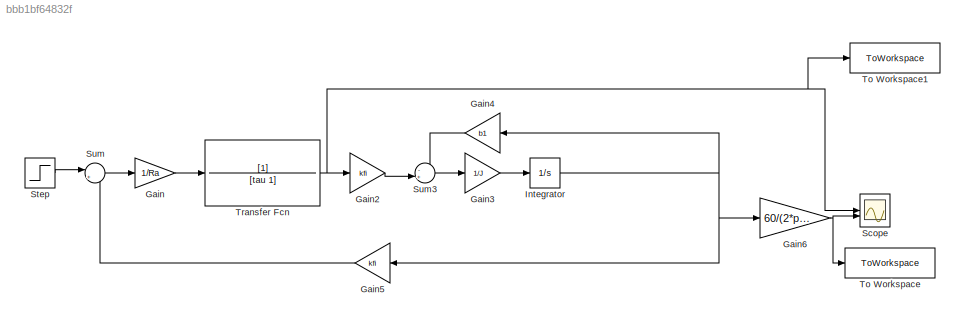
MODEL slx_bbb1bf64832f
KIND model
CONFIG AbsTol = auto
CONFIG EnableMultiTasking = off
CONFIG FixedStep = auto
CONFIG MaxStep = auto
CONFIG MinStep = auto
CONFIG RelTol = 1e-3
CONFIG SampleTimeConstraint = Unconstrained
CONFIG SolverName = VariableStepAuto
CONFIG StartTime = 0.0
CONFIG StopTime = 2
BLOCK [Gain] Gain
  Gain = 1/Ra
BLOCK [Gain] Gain2
  Gain = kfi
BLOCK [Gain] Gain3
  Gain = 1/J
BLOCK [Gain] Gain4
  Gain = b1
  NameLocation = top
BLOCK [Gain] Gain5
  Gain = kfi
  NameLocation = top
BLOCK [Gain] Gain6
  Gain = 60/(2*pi)
BLOCK [Integrator] Integrator
BLOCK [Scope] Scope
  ActiveDisplayYMaximum = 69.807665085858389
  ActiveDisplayYMinimum = -7.7564072317620418
  Floating = off
  GraphicalSettings = {"Style":{"BackgroundColor":[0.12941176470588237,0.12941176470588237,0.12941176470588237],"AxesColor":[0.07058823529411765,0.07058823529411765,0.07058823529411765],"LabelsColor":[0.8509803921568627,0.8509803921568627,0.8509803921568627],"PreserveColors":false,"Visible":[true,true],"LineStyle":["-","-"],"LineWidth":[1.5,1.5],"BarWidth":[0.9,0.9],"LineColor":["auto","auto"],"LineFaceAlpha":[1,1],"Li...<+2758ch>
  LayoutDimensionsString = [2,1]
  MultipleDisplayCache = [{"MaxYLimMag":69.807665085858389,"MaxYLimReal":69.807665085858389,"MinYLimMag":0,"MinYLimReal":-7.7564072317620418,"PlotAsMagnitudePhase":false,"ShowGrid":true,"ShowLegend":false,"Title":"%<SignalLabel>","YLabel":""},{"MaxYLimMag":1242.8172906303612,"MaxYLimReal":1058.5125579909138,"MinYLimMag":0,"MinYLimReal":1058.481930688567,"PlotAsMagnitudePhase":false,"ShowGrid":true,"ShowLegend":false,"Titl...<+33ch>
  NumInputPorts = 2
  ScopeFrameLocation = window
  WasSavedAsWebScope = on
  WindowPosition = [962.000000,50.000000,958.000000,1000.000000,]
BLOCK [Step] Step
  After = Ua
  SampleTime = 0
BLOCK [Sum] Sum
  Inputs = |+-
BLOCK [Sum] Sum3
  Inputs = -+|
BLOCK [ToWorkspace] To Workspace
  FixptAsFi = on
  MaxDataPoints = inf
  SampleTime = -1
  SaveFormat = Structure With Time
  VariableName = omega
BLOCK [ToWorkspace] To Workspace1
  FixptAsFi = on
  MaxDataPoints = inf
  SampleTime = -1
  SaveFormat = Structure With Time
  VariableName = ia
BLOCK [TransferFcn] Transfer Fcn
  Denominator = [tau 1]
LINE Gain2:1 -> Sum3:2
LINE Gain3:1 -> Integrator:1
LINE Gain4:1 -> Sum3:1
LINE Gain5:1 -> Sum:2
NET Gain6:1 -> Scope:2, To Workspace:1
LINE Gain:1 -> Transfer Fcn:1
NET Integrator:1 -> Gain4:1, Gain5:1, Gain6:1
LINE Step:1 -> Sum:1
LINE Sum3:1 -> Gain3:1
LINE Sum:1 -> Gain:1
NET Transfer Fcn:1 -> Gain2:1, Scope:1, To Workspace1:1
note: NET lines group one-source signal fan-out (src -> all destinations, sorted); 1:1 wires keep LINE
